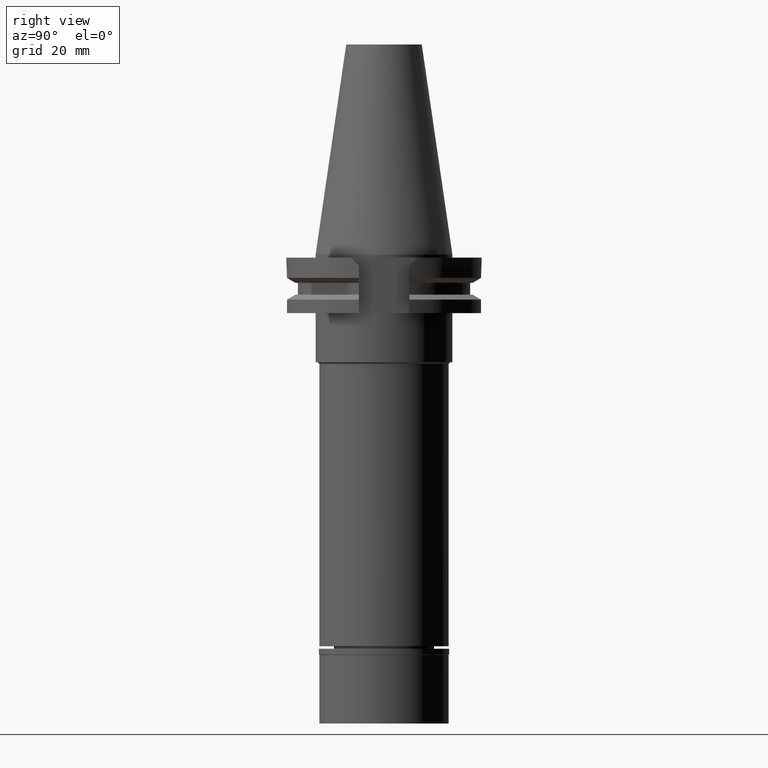
[diagram: clean part render]
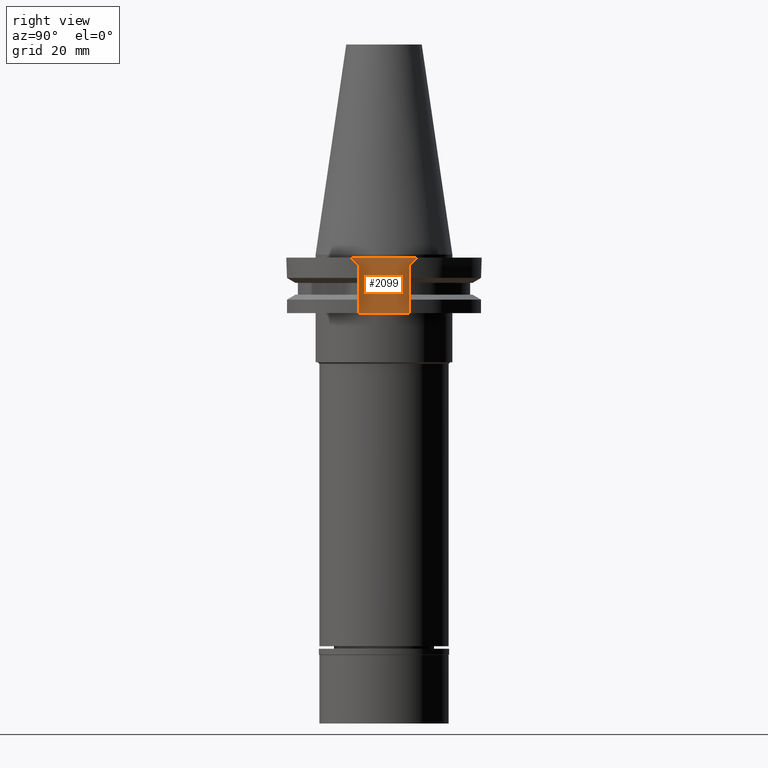
[diagram: same view with one face highlighted and labeled with its STEP entity id]
A machine part, right view. The second image highlights one B-rep face of the part: STEP entity #2099.
In plain terms, the highlighted planar face has unit normal (1, 0, 0).
Its self-contained STEP definition (entity closure, byte-faithful):
#115 = LINE ( 'NONE', #573, #1170 ) ;
#188 = DIRECTION ( 'NONE',  ( 0.0000000000000000000, 1.000000000000000000, 0.0000000000000000000 ) ) ;
#205 = CARTESIAN_POINT ( 'NONE',  ( 22.57000000000000028, 0.0000000000000000000, 0.0000000000000000000 ) ) ;
#251 = VERTEX_POINT ( 'NONE', #1403 ) ;
#266 = CARTESIAN_POINT ( 'NONE',  ( 22.57000000000000028, 10.89000000000000057, -1.000000000000000000 ) ) ;
#352 = CARTESIAN_POINT ( 'NONE',  ( 22.57000000000000028, 10.89000000000000057, -1.000000000000000000 ) ) ;
#461 = PLANE ( 'NONE',  #1714 ) ;
#573 = CARTESIAN_POINT ( 'NONE',  ( 22.57000000000000028, 8.189999999999999503, -3.700000000000000178 ) ) ;
#588 = VECTOR ( 'NONE', #3121, 1000.000000000000000 ) ;
#616 = LINE ( 'NONE', #1667, #1383 ) ;
#659 = ORIENTED_EDGE ( 'NONE', *, *, #711, .F. ) ;
#664 = CARTESIAN_POINT ( 'NONE',  ( 22.57000000000000028, -8.189999999999999503, -19.05000000000000071 ) ) ;
#711 = EDGE_CURVE ( 'NONE', #1675, #251, #2097, .T. ) ;
#733 = EDGE_CURVE ( 'NONE', #3290, #2143, #2616, .T. ) ;
#737 = EDGE_CURVE ( 'NONE', #251, #1214, #616, .T. ) ;
#862 = CARTESIAN_POINT ( 'NONE',  ( 22.57000000000000028, -8.189999999999999503, -19.05000000000000071 ) ) ;
#925 = CARTESIAN_POINT ( 'NONE',  ( 22.57000000000000028, 8.189999999999999503, -19.05000000000000071 ) ) ;
#1088 = LINE ( 'NONE', #1360, #1504 ) ;
#1099 = CARTESIAN_POINT ( 'NONE',  ( 22.57000000000000028, -10.89000000000000057, -1.000000000000000000 ) ) ;
#1170 = VECTOR ( 'NONE', #3129, 1000.000000000000000 ) ;
#1198 = EDGE_LOOP ( 'NONE', ( #1659, #2082, #1781, #2999, #659, #1972 ) ) ;
#1214 = VERTEX_POINT ( 'NONE', #1099 ) ;
#1360 = CARTESIAN_POINT ( 'NONE',  ( 22.57000000000000028, 10.89000000000000057, -1.000000000000000000 ) ) ;
#1363 = DIRECTION ( 'NONE',  ( 0.0000000000000000000, -0.7071067811865474617, -0.7071067811865474617 ) ) ;
#1383 = VECTOR ( 'NONE', #1901, 1000.000000000000114 ) ;
#1403 = CARTESIAN_POINT ( 'NONE',  ( 22.57000000000000028, -8.189999999999999503, -3.700000000000000178 ) ) ;
#1483 = VERTEX_POINT ( 'NONE', #3280 ) ;
#1504 = VECTOR ( 'NONE', #1635, 1000.000000000000000 ) ;
#1635 = DIRECTION ( 'NONE',  ( 0.0000000000000000000, -1.000000000000000000, 0.0000000000000000000 ) ) ;
#1659 = ORIENTED_EDGE ( 'NONE', *, *, #2430, .F. ) ;
#1667 = CARTESIAN_POINT ( 'NONE',  ( 22.57000000000000028, -8.189999999999999503, -3.700000000000000178 ) ) ;
#1675 = VERTEX_POINT ( 'NONE', #664 ) ;
#1691 = FACE_OUTER_BOUND ( 'NONE', #1198, .T. ) ;
#1714 = AXIS2_PLACEMENT_3D ( 'NONE', #205, #3225, #188 ) ;
#1781 = ORIENTED_EDGE ( 'NONE', *, *, #1922, .T. ) ;
#1803 = EDGE_CURVE ( 'NONE', #1483, #1675, #3201, .T. ) ;
#1838 = DIRECTION ( 'NONE',  ( 0.0000000000000000000, -1.000000000000000000, 0.0000000000000000000 ) ) ;
#1901 = DIRECTION ( 'NONE',  ( 0.0000000000000000000, -0.7071067811865474617, 0.7071067811865474617 ) ) ;
#1922 = EDGE_CURVE ( 'NONE', #3290, #1214, #1088, .T. ) ;
#1972 = ORIENTED_EDGE ( 'NONE', *, *, #1803, .F. ) ;
#1981 = CARTESIAN_POINT ( 'NONE',  ( 22.57000000000000028, 8.189999999999999503, -3.700000000000000178 ) ) ;
#2082 = ORIENTED_EDGE ( 'NONE', *, *, #733, .F. ) ;
#2097 = LINE ( 'NONE', #862, #588 ) ;
#2099 = ADVANCED_FACE ( 'NONE', ( #1691 ), #461, .T. ) ;
#2116 = VECTOR ( 'NONE', #1363, 1000.000000000000114 ) ;
#2143 = VERTEX_POINT ( 'NONE', #1981 ) ;
#2430 = EDGE_CURVE ( 'NONE', #2143, #1483, #115, .T. ) ;
#2492 = VECTOR ( 'NONE', #1838, 1000.000000000000000 ) ;
#2616 = LINE ( 'NONE', #352, #2116 ) ;
#2999 = ORIENTED_EDGE ( 'NONE', *, *, #737, .F. ) ;
#3121 = DIRECTION ( 'NONE',  ( 0.0000000000000000000, 0.0000000000000000000, 1.000000000000000000 ) ) ;
#3129 = DIRECTION ( 'NONE',  ( 0.0000000000000000000, 0.0000000000000000000, -1.000000000000000000 ) ) ;
#3201 = LINE ( 'NONE', #925, #2492 ) ;
#3225 = DIRECTION ( 'NONE',  ( 1.000000000000000000, 0.0000000000000000000, 0.0000000000000000000 ) ) ;
#3280 = CARTESIAN_POINT ( 'NONE',  ( 22.57000000000000028, 8.189999999999999503, -19.05000000000000071 ) ) ;
#3290 = VERTEX_POINT ( 'NONE', #266 ) ;